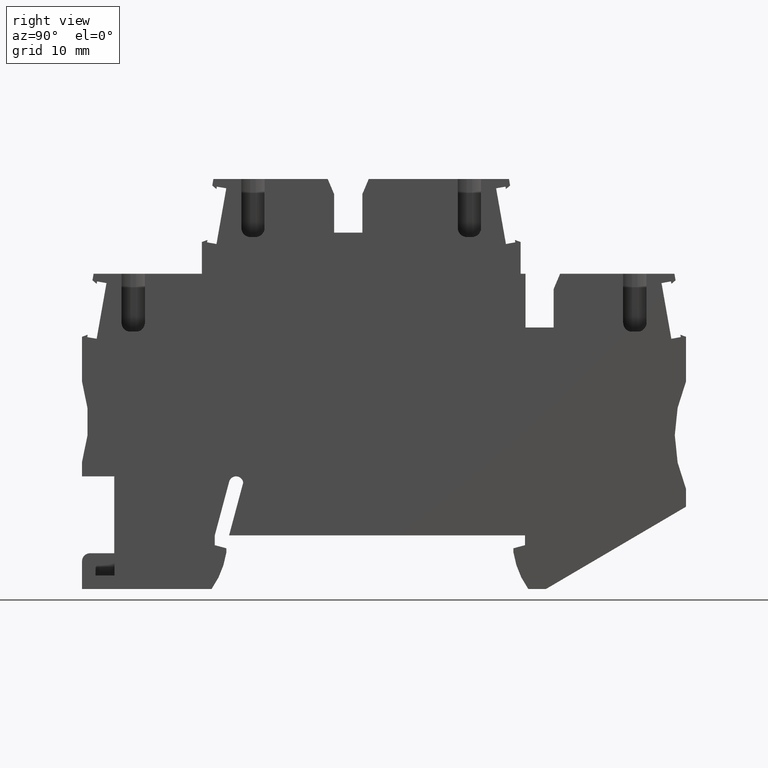
[diagram: clean part render]
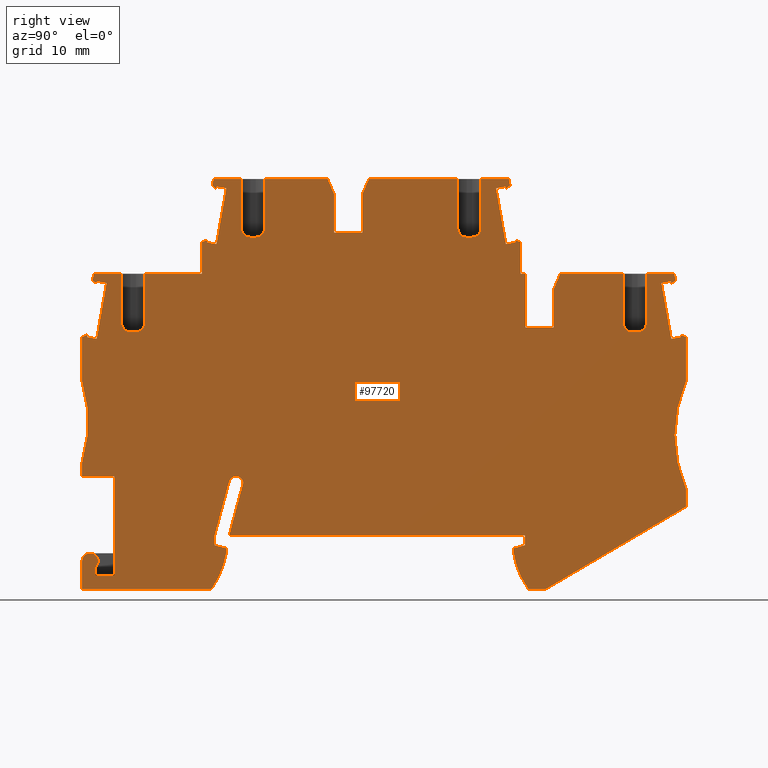
[diagram: same view with one face highlighted and labeled with its STEP entity id]
A machine part, right view. The second image highlights one B-rep face of the part: STEP entity #97720.
In plain terms, the highlighted planar face has unit normal (1, -0, -0).
Its self-contained STEP definition (entity closure, byte-faithful):
#6490=CARTESIAN_POINT('',(184.928036999983,25.7467138221751,53.67));
#6500=VERTEX_POINT('',#6490);
#6530=CARTESIAN_POINT('',(184.928036999983,-15.176449,53.67));
#6540=DIRECTION('',(2.692290834716E-15,-1.,0.));
#6550=VECTOR('',#6540,1.);
#6560=LINE('',#6530,#6550);
#6570=CARTESIAN_POINT('',(184.928036999983,31.7467138221735,53.67));
#6580=VERTEX_POINT('',#6570);
#6590=EDGE_CURVE('',#6580,#6500,#6560,.T.);
#9760=CARTESIAN_POINT('',(197.453037000004,25.2467138221743,53.67));
#9770=VERTEX_POINT('',#9760);
#11160=CARTESIAN_POINT('',(196.853037000005,25.2467138221757,53.67));
#11170=VERTEX_POINT('',#11160);
#17270=CARTESIAN_POINT('',(195.853037000005,31.746713822173,53.67));
#17280=VERTEX_POINT('',#17270);
#17360=CARTESIAN_POINT('',(195.853037000006,26.2467138221756,53.67));
#17370=VERTEX_POINT('',#17360);
#17400=CARTESIAN_POINT('',(195.853037000009,2.99671382217016,
53.6700000000001));
#17410=DIRECTION('',(-1.17239551400417E-13,1.,2.77555756285536E-17));
#17420=VECTOR('',#17410,1.);
#17430=LINE('',#17400,#17420);
#17440=EDGE_CURVE('',#17370,#17280,#17430,.T.);
#17990=CARTESIAN_POINT('',(14.205724548308,-44.3347945523262,53.67));
#18000=DIRECTION('',(0.965925826289086,0.258819045102457,0.));
#18010=VECTOR('',#18000,1.);
#18020=LINE('',#17990,#18010);
#18030=CARTESIAN_POINT('',(183.578037308736,1.04837987200989,53.67));
#18040=VERTEX_POINT('',#18030);
#18050=CARTESIAN_POINT('',(184.878037308736,1.39671382217028,53.67));
#18060=VERTEX_POINT('',#18050);
#18070=EDGE_CURVE('',#18040,#18060,#18020,.T.);
#18370=CARTESIAN_POINT('',(184.878037308736,-15.176449,53.67));
#18380=DIRECTION('',(6.93889390390723E-17,1.,0.));
#18390=VECTOR('',#18380,1.);
#18400=LINE('',#18370,#18390);
#18410=CARTESIAN_POINT('',(184.878037308736,2.4967138221702,53.67));
#18420=VERTEX_POINT('',#18410);
#18430=EDGE_CURVE('',#18060,#18420,#18400,.T.);
#18680=CARTESIAN_POINT('',(14.205724548308,2.49671382217021,53.67));
#18690=DIRECTION('',(-1.,6.93889390390723E-17,0.));
#18700=VECTOR('',#18690,1.);
#18710=LINE('',#18680,#18700);
#18720=CARTESIAN_POINT('',(151.778037308736,2.4967138221702,53.67));
#18730=VERTEX_POINT('',#18720);
#18740=EDGE_CURVE('',#18420,#18730,#18710,.T.);
#18990=CARTESIAN_POINT('',(183.578037308725,-15.176449,53.67));
#19000=DIRECTION('',(6.90295043348499E-13,1.,0.));
#19010=VECTOR('',#19000,1.);
#19020=LINE('',#18990,#19010);
#19030=CARTESIAN_POINT('',(183.578037308736,0.596713822169791,53.67));
#19040=VERTEX_POINT('',#19030);
#19050=EDGE_CURVE('',#19040,#18040,#19020,.T.);
#19300=CARTESIAN_POINT('',(192.972009988112,2.0120856104678,53.67));
#19310=DIRECTION('',(0.,0.,-1.));
#19320=DIRECTION('',(-1.,6.93889390390723E-17,0.));
#19330=AXIS2_PLACEMENT_3D('',#19300,#19310,#19320);
#19340=CIRCLE('',#19330,9.499999999999);
#19350=CARTESIAN_POINT('',(185.236980961868,-3.50328617782979,53.67));
#19360=VERTEX_POINT('',#19350);
#19370=EDGE_CURVE('',#19360,#19040,#19340,.T.);
#19620=CARTESIAN_POINT('',(14.205724548308,-3.50328617781987,53.67));
#19630=DIRECTION('',(-1.,5.79813974610488E-14,0.));
#19640=VECTOR('',#19630,1.);
#19650=LINE('',#19620,#19640);
#19660=CARTESIAN_POINT('',(187.222178282835,-3.5032861778299,53.67));
#19670=VERTEX_POINT('',#19660);
#19680=EDGE_CURVE('',#19670,#19360,#19650,.T.);
#19930=CARTESIAN_POINT('',(14.205724548308,-105.174575611719,53.67));
#19940=DIRECTION('',(-0.862158641431198,-0.5066384085376,0.));
#19950=VECTOR('',#19940,1.);
#19960=LINE('',#19930,#19950);
#19970=CARTESIAN_POINT('',(202.878037308736,5.6967138221754,53.67));
#19980=VERTEX_POINT('',#19970);
#19990=EDGE_CURVE('',#19980,#19670,#19960,.T.);
#20240=CARTESIAN_POINT('',(202.878037308736,-15.176449,53.67));
#20250=DIRECTION('',(-1.3062127899644E-16,-1.,0.));
#20260=VECTOR('',#20250,1.);
#20270=LINE('',#20240,#20260);
#20280=CARTESIAN_POINT('',(202.878037308736,7.69671382216888,53.67));
#20290=VERTEX_POINT('',#20280);
#20300=EDGE_CURVE('',#20290,#19980,#20270,.T.);
#20550=CARTESIAN_POINT('',(216.625764393603,13.6967138221689,53.67));
#20560=DIRECTION('',(0.,0.,1.));
#20570=DIRECTION('',(1.,-6.93889390390723E-17,0.));
#20580=AXIS2_PLACEMENT_3D('',#20550,#20560,#20570);
#20590=CIRCLE('',#20580,15.);
#20600=CARTESIAN_POINT('',(202.878037294039,19.6967137884928,53.67));
#20610=VERTEX_POINT('',#20600);
#20620=EDGE_CURVE('',#20610,#20290,#20590,.T.);
#20870=CARTESIAN_POINT('',(202.878037294039,-15.176449,53.67));
#20880=DIRECTION('',(-6.93889390390723E-17,-1.,0.));
#20890=VECTOR('',#20880,1.);
#20900=LINE('',#20870,#20890);
#20910=CARTESIAN_POINT('',(202.878037294039,24.7030731418167,53.67));
#20920=VERTEX_POINT('',#20910);
#20930=EDGE_CURVE('',#20920,#20610,#20900,.T.);
#21180=CARTESIAN_POINT('',(14.205724548308,93.3741790099296,53.67));
#21190=DIRECTION('',(0.939692620788304,-0.342020143319087,0.));
#21200=VECTOR('',#21190,1.);
#21210=LINE('',#21180,#21200);
#21220=CARTESIAN_POINT('',(202.245229272641,24.9333964256054,53.67));
#21230=VERTEX_POINT('',#21220);
#21240=EDGE_CURVE('',#21230,#20920,#21210,.T.);
#21490=CARTESIAN_POINT('',(209.317677213263,-15.176449,53.67));
#21500=DIRECTION('',(0.173648177667931,-0.984807753012032,0.));
#21510=VECTOR('',#21500,1.);
#21520=LINE('',#21490,#21510);
#21530=CARTESIAN_POINT('',(202.292514994815,24.6652257691104,53.67));
#21540=VERTEX_POINT('',#21530);
#21550=EDGE_CURVE('',#21230,#21540,#21520,.T.);
#21800=CARTESIAN_POINT('',(14.205724548308,-8.49955010156951,53.67));
#21810=DIRECTION('',(-0.984807753012117,-0.173648177667446,0.));
#21820=VECTOR('',#21810,1.);
#21830=LINE('',#21800,#21820);
#21840=CARTESIAN_POINT('',(201.238770699091,24.479422219006,53.67));
#21850=VERTEX_POINT('',#21840);
#21860=EDGE_CURVE('',#21540,#21850,#21830,.T.);
#22110=CARTESIAN_POINT('',(208.231170738506,-15.176449,53.67));
#22120=DIRECTION('',(0.17364817766702,-0.984807753012192,0.));
#22130=VECTOR('',#22120,1.);
#22140=LINE('',#22110,#22130);
#22150=CARTESIAN_POINT('',(200.140445975347,30.7083312568086,53.67));
#22160=VERTEX_POINT('',#22150);
#22170=EDGE_CURVE('',#22160,#21850,#22140,.T.);
#22420=CARTESIAN_POINT('',(209.317677213191,-15.176449,53.67));
#22430=DIRECTION('',(0.173648177666326,-0.984807753012315,0.));
#22440=VECTOR('',#22430,1.);
#22450=LINE('',#22420,#22440);
#22460=CARTESIAN_POINT('',(201.194190271071,30.8941348069122,53.67));
#22470=VERTEX_POINT('',#22460);
#22480=CARTESIAN_POINT('',(201.241475993246,30.6259641504139,53.67));
#22490=VERTEX_POINT('',#22480);
#22500=EDGE_CURVE('',#22470,#22490,#22450,.T.);
#22800=CARTESIAN_POINT('',(14.205724548308,-2.07697678126761,53.67));
#22810=DIRECTION('',(0.984807753012229,0.173648177666812,0.));
#22820=VECTOR('',#22810,1.);
#22830=LINE('',#22800,#22820);
#22840=EDGE_CURVE('',#22160,#22470,#22830,.T.);
#23040=CARTESIAN_POINT('',(14.205724548308,-126.315665903762,53.67));
#23050=DIRECTION('',(-0.766044443119454,-0.642787609685972,0.));
#23060=VECTOR('',#23050,1.);
#23070=LINE('',#23040,#23060);
#23080=CARTESIAN_POINT('',(201.710288516618,31.0193445658664,53.67));
#23090=VERTEX_POINT('',#23080);
#23100=EDGE_CURVE('',#23090,#22490,#23070,.T.);
#23350=CARTESIAN_POINT('',(209.855853317472,-15.176449,53.67));
#23360=DIRECTION('',(0.173648177665959,-0.984807753012379,0.));
#23370=VECTOR('',#23360,1.);
#23380=LINE('',#23350,#23370);
#23390=CARTESIAN_POINT('',(201.582033691794,31.7467138221735,53.67));
#23400=VERTEX_POINT('',#23390);
#23410=EDGE_CURVE('',#23400,#23090,#23380,.T.);
#24000=CARTESIAN_POINT('',(14.205724548308,31.7467138221518,53.67));
#24010=DIRECTION('',(1.,1.15435438985401E-13,0.));
#24020=VECTOR('',#24010,1.);
#24030=LINE('',#24000,#24020);
#24040=CARTESIAN_POINT('',(198.453037000005,31.746713822173,53.67));
#24050=VERTEX_POINT('',#24040);
#24060=EDGE_CURVE('',#24050,#23400,#24030,.T.);
#24330=CARTESIAN_POINT('',(188.796537028019,31.746713822172,53.67));
#24340=VERTEX_POINT('',#24330);
#24350=EDGE_CURVE('',#24340,#17280,#24030,.T.);
#26030=CARTESIAN_POINT('',(168.964608018885,-15.176449,53.67));
#26040=DIRECTION('',(-0.389303997086923,-0.921109330021222,0.));
#26050=VECTOR('',#26040,1.);
#26060=LINE('',#26030,#26050);
#26070=CARTESIAN_POINT('',(188.078037000003,30.0467130916931,53.67));
#26080=VERTEX_POINT('',#26070);
#26090=EDGE_CURVE('',#24340,#26080,#26060,.T.);
#26340=CARTESIAN_POINT('',(188.078037000003,-15.176449,53.67));
#26350=DIRECTION('',(-9.18709552877317E-15,1.,0.));
#26360=VECTOR('',#26350,1.);
#26370=LINE('',#26340,#26360);
#26380=CARTESIAN_POINT('',(188.078037000003,25.7467138221751,53.67));
#26390=VERTEX_POINT('',#26380);
#26400=EDGE_CURVE('',#26390,#26080,#26370,.T.);
#26840=CARTESIAN_POINT('',(168.653843651947,25.2467138221717,53.67));
#26850=DIRECTION('',(1.,8.9848551017661E-14,0.));
#26860=VECTOR('',#26850,1.);
#26870=LINE('',#26840,#26860);
#26880=EDGE_CURVE('',#11170,#9770,#26870,.T.);
#27650=CARTESIAN_POINT('',(178.953036999988,35.8467138221694,53.67));
#27660=VERTEX_POINT('',#27650);
#28950=CARTESIAN_POINT('',(179.953036999989,2.99671382217016,53.67));
#28960=DIRECTION('',(-7.24420523566576E-15,1.,0.));
#28970=VECTOR('',#28960,1.);
#28980=LINE('',#28950,#28970);
#28990=CARTESIAN_POINT('',(179.953036999989,36.8467138221695,
53.6699999999999));
#29000=VERTEX_POINT('',#28990);
#29010=CARTESIAN_POINT('',(179.953036999988,42.3467138221667,53.67));
#29020=VERTEX_POINT('',#29010);
#29030=EDGE_CURVE('',#29000,#29020,#28980,.T.);
#29300=CARTESIAN_POINT('',(178.953036999989,36.846713822168,53.67));
#29310=DIRECTION('',(-1.15352172258554E-13,2.7755575615018E-17,-1.));
#29320=DIRECTION('',(-1.,1.09995346164751E-13,1.15352172258554E-13));
#29330=AXIS2_PLACEMENT_3D('',#29300,#29310,#29320);
#29340=CIRCLE('',#29330,1.);
#29350=EDGE_CURVE('',#29000,#27660,#29340,.T.);
#30430=CARTESIAN_POINT('',(178.353036999988,35.8467138221693,53.67));
#30440=VERTEX_POINT('',#30430);
#39650=CARTESIAN_POINT('',(168.653843651947,35.8467138221671,53.67));
#39660=DIRECTION('',(1.,8.9848551017661E-14,0.));
#39670=VECTOR('',#39660,1.);
#39680=LINE('',#39650,#39670);
#39690=EDGE_CURVE('',#30440,#27660,#39680,.T.);
#39930=CARTESIAN_POINT('',(177.353036999988,42.3467138221667,53.67));
#39940=VERTEX_POINT('',#39930);
#40020=CARTESIAN_POINT('',(177.353036999989,36.8467138221693,53.67));
#40030=VERTEX_POINT('',#40020);
#40060=CARTESIAN_POINT('',(177.353036999993,2.99671382217016,
53.6700000000001));
#40070=DIRECTION('',(-1.17239551400417E-13,1.,2.77555756285536E-17));
#40080=VECTOR('',#40070,1.);
#40090=LINE('',#40060,#40080);
#40100=EDGE_CURVE('',#40030,#39940,#40090,.T.);
#40220=CARTESIAN_POINT('',(178.353036999989,36.8467138221694,53.67));
#40230=DIRECTION('',(0.,0.,1.));
#40240=DIRECTION('',(1.,0.,0.));
#40250=AXIS2_PLACEMENT_3D('',#40220,#40230,#40240);
#40260=CIRCLE('',#40250,1.);
#40270=EDGE_CURVE('',#40030,#30440,#40260,.T.);
#41170=CARTESIAN_POINT('',(193.224919313043,-15.176449,53.67));
#41180=DIRECTION('',(0.173648177667472,-0.984807753012113,0.));
#41190=VECTOR('',#41180,1.);
#41200=LINE('',#41170,#41190);
#41210=CARTESIAN_POINT('',(183.082033691777,42.3467138221672,53.67));
#41220=VERTEX_POINT('',#41210);
#41230=CARTESIAN_POINT('',(183.210288516602,41.619344565859,53.67));
#41240=VERTEX_POINT('',#41230);
#41250=EDGE_CURVE('',#41220,#41240,#41200,.T.);
#41550=CARTESIAN_POINT('',(192.686743208676,-15.176449,53.67));
#41560=DIRECTION('',(0.173648177666326,-0.984807753012315,0.));
#41570=VECTOR('',#41560,1.);
#41580=LINE('',#41550,#41570);
#41590=CARTESIAN_POINT('',(182.694190271054,41.4941348069044,53.67));
#41600=VERTEX_POINT('',#41590);
#41610=CARTESIAN_POINT('',(182.741475993229,41.2259641504061,53.67));
#41620=VERTEX_POINT('',#41610);
#41630=EDGE_CURVE('',#41600,#41620,#41580,.T.);
#41930=CARTESIAN_POINT('',(191.600236734,-15.176449,53.67));
#41940=DIRECTION('',(0.173648177667046,-0.984807753012188,0.));
#41950=VECTOR('',#41940,1.);
#41960=LINE('',#41930,#41950);
#41970=CARTESIAN_POINT('',(181.640445975331,41.3083312568009,53.67));
#41980=VERTEX_POINT('',#41970);
#41990=CARTESIAN_POINT('',(182.738770699075,35.0794222189983,53.67));
#42000=VERTEX_POINT('',#41990);
#42010=EDGE_CURVE('',#41980,#42000,#41960,.T.);
#42310=CARTESIAN_POINT('',(14.205724548308,97.2407296761239,53.67));
#42320=DIRECTION('',(0.939692620788329,-0.342020143319018,0.));
#42330=VECTOR('',#42320,1.);
#42340=LINE('',#42310,#42330);
#42350=CARTESIAN_POINT('',(183.745229272624,35.5333964255975,53.67));
#42360=VERTEX_POINT('',#42350);
#42370=CARTESIAN_POINT('',(184.37803727474,35.3030731488271,53.67));
#42380=VERTEX_POINT('',#42370);
#42390=EDGE_CURVE('',#42360,#42380,#42340,.T.);
#42690=CARTESIAN_POINT('',(184.37803727474,31.7467138221735,53.67));
#42700=DIRECTION('',(1.,0.,0.));
#42710=VECTOR('',#42700,1.);
#42720=LINE('',#42690,#42710);
#42730=CARTESIAN_POINT('',(184.37803727474,31.7467138221735,53.67));
#42740=VERTEX_POINT('',#42730);
#42750=EDGE_CURVE('',#42740,#6580,#42720,.T.);
#43000=CARTESIAN_POINT('',(184.37803727474,-15.176449,53.67));
#43010=DIRECTION('',(-5.46784839627889E-15,1.,0.));
#43020=VECTOR('',#43010,1.);
#43030=LINE('',#43000,#43020);
#43040=EDGE_CURVE('',#42740,#42380,#43030,.T.);
#43240=CARTESIAN_POINT('',(192.686743208766,-15.176449,53.67));
#43250=DIRECTION('',(0.173648177667931,-0.984807753012032,0.));
#43260=VECTOR('',#43250,1.);
#43270=LINE('',#43240,#43260);
#43280=CARTESIAN_POINT('',(183.792514994799,35.2652257691027,53.67));
#43290=VERTEX_POINT('',#43280);
#43300=EDGE_CURVE('',#42360,#43290,#43270,.T.);
#43550=CARTESIAN_POINT('',(14.205724548308,5.36249904154224,53.67));
#43560=DIRECTION('',(-0.984807753012117,-0.173648177667446,0.));
#43570=VECTOR('',#43560,1.);
#43580=LINE('',#43550,#43570);
#43590=EDGE_CURVE('',#43290,#42000,#43580,.T.);
#43790=CARTESIAN_POINT('',(14.205724548308,11.7850723618319,53.67));
#43800=DIRECTION('',(0.984807753012229,0.173648177666812,0.));
#43810=VECTOR('',#43800,1.);
#43820=LINE('',#43790,#43810);
#43830=EDGE_CURVE('',#41980,#41600,#43820,.T.);
#44030=CARTESIAN_POINT('',(14.205724548308,-100.192322726944,53.67));
#44040=DIRECTION('',(-0.76604444311958,-0.642787609685822,0.));
#44050=VECTOR('',#44040,1.);
#44060=LINE('',#44030,#44050);
#44070=EDGE_CURVE('',#41240,#41620,#44060,.T.);
#44950=CARTESIAN_POINT('',(14.205724548308,42.3467138221476,53.67));
#44960=DIRECTION('',(-1.,-1.15435438985401E-13,0.));
#44970=VECTOR('',#44960,1.);
#44980=LINE('',#44950,#44970);
#44990=EDGE_CURVE('',#41220,#29020,#44980,.T.);
#45060=CARTESIAN_POINT('',(167.396536719284,42.3467138221654,53.67));
#45070=VERTEX_POINT('',#45060);
#45080=EDGE_CURVE('',#39940,#45070,#44980,.T.);
#48190=CARTESIAN_POINT('',(143.084550636986,-15.176449,53.67));
#48200=DIRECTION('',(-0.389303997086923,-0.921109330021222,0.));
#48210=VECTOR('',#48200,1.);
#48220=LINE('',#48190,#48210);
#48230=CARTESIAN_POINT('',(166.678037000003,40.6467138221656,53.67));
#48240=VERTEX_POINT('',#48230);
#48250=EDGE_CURVE('',#45070,#48240,#48220,.T.);
#48500=CARTESIAN_POINT('',(166.678037000003,-15.176449,53.67));
#48510=DIRECTION('',(-9.18709552877317E-15,1.,0.));
#48520=VECTOR('',#48510,1.);
#48530=LINE('',#48500,#48520);
#48540=CARTESIAN_POINT('',(166.678037000003,36.3467138221751,53.67));
#48550=VERTEX_POINT('',#48540);
#48560=EDGE_CURVE('',#48550,#48240,#48530,.T.);
#49640=CARTESIAN_POINT('',(163.528036999983,36.3467138221751,53.67));
#49650=VERTEX_POINT('',#49640);
#49680=CARTESIAN_POINT('',(163.528036999983,-15.176449,53.67));
#49690=DIRECTION('',(2.692290834716E-15,-1.,0.));
#49700=VECTOR('',#49690,1.);
#49710=LINE('',#49680,#49700);
#49720=CARTESIAN_POINT('',(163.528036999983,40.6467138221659,53.67));
#49730=VERTEX_POINT('',#49720);
#49740=EDGE_CURVE('',#49730,#49650,#49710,.T.);
#49990=CARTESIAN_POINT('',(187.121523363,-15.176449,53.67));
#50000=DIRECTION('',(-0.389303997086923,0.921109330021222,0.));
#50010=VECTOR('',#50000,1.);
#50020=LINE('',#49990,#50010);
#50030=CARTESIAN_POINT('',(162.809537280701,42.346713822167,53.67));
#50040=VERTEX_POINT('',#50030);
#50050=EDGE_CURVE('',#49730,#50040,#50020,.T.);
#50260=CARTESIAN_POINT('',(14.205724548308,36.3467138221766,53.67));
#50270=DIRECTION('',(-1.,9.92261828258734E-15,0.));
#50280=VECTOR('',#50270,1.);
#50290=LINE('',#50260,#50280);
#50300=EDGE_CURVE('',#48550,#49650,#50290,.T.);
#51280=CARTESIAN_POINT('',(154.753036999973,35.8467138221694,53.67));
#51290=VERTEX_POINT('',#51280);
#54770=CARTESIAN_POINT('',(168.653843651947,35.8467138221681,53.67));
#54780=DIRECTION('',(-1.,8.45313655265971E-14,0.));
#54790=VECTOR('',#54780,1.);
#54800=LINE('',#54770,#54790);
#54810=CARTESIAN_POINT('',(154.153036999974,35.8467138221694,53.67));
#54820=VERTEX_POINT('',#54810);
#54830=EDGE_CURVE('',#51290,#54820,#54800,.T.);
#58440=CARTESIAN_POINT('',(155.753036999973,36.8467138221694,
53.6700000000001));
#58450=VERTEX_POINT('',#58440);
#58530=CARTESIAN_POINT('',(155.753036999973,42.346713822168,
53.6700000000001));
#58540=VERTEX_POINT('',#58530);
#58570=CARTESIAN_POINT('',(155.753036999969,2.99671382217016,
53.6700000000001));
#58580=DIRECTION('',(-1.17239551400417E-13,-1.,-2.77555756291847E-17));
#58590=VECTOR('',#58580,1.);
#58600=LINE('',#58570,#58590);
#58610=EDGE_CURVE('',#58540,#58450,#58600,.T.);
#58750=CARTESIAN_POINT('',(154.753036999973,36.8467138221694,53.67));
#58760=DIRECTION('',(0.,0.,1.));
#58770=DIRECTION('',(1.,0.,0.));
#58780=AXIS2_PLACEMENT_3D('',#58750,#58760,#58770);
#58790=CIRCLE('',#58780,1.);
#58800=EDGE_CURVE('',#51290,#58450,#58790,.T.);
#64650=CARTESIAN_POINT('',(154.153036999973,36.8467138221694,53.67));
#64660=DIRECTION('',(-1.15518705712248E-13,-2.7755575615654E-17,1.));
#64670=DIRECTION('',(1.,1.15504827924453E-13,1.15518705712248E-13));
#64680=AXIS2_PLACEMENT_3D('',#64650,#64660,#64670);
#64690=CIRCLE('',#64680,1.);
#64700=CARTESIAN_POINT('',(153.153036999973,36.8467138221695,
53.6699999999999));
#64710=VERTEX_POINT('',#64700);
#64720=EDGE_CURVE('',#64710,#54820,#64690,.T.);
#64980=CARTESIAN_POINT('',(153.153036999973,2.99671382217016,53.67));
#64990=DIRECTION('',(1.73472347596343E-15,1.,0.));
#65000=VECTOR('',#64990,1.);
#65010=LINE('',#64980,#65000);
#65020=CARTESIAN_POINT('',(153.153036999973,42.346713822168,53.67));
#65030=VERTEX_POINT('',#65020);
#65040=EDGE_CURVE('',#64710,#65030,#65010,.T.);
#66160=CARTESIAN_POINT('',(138.928036999999,-2.00328617783009,53.67));
#66170=VERTEX_POINT('',#66160);
#66200=CARTESIAN_POINT('',(14.205724548308,-2.00328617783009,53.67));
#66210=DIRECTION('',(1.,-6.93889390390723E-17,0.));
#66220=VECTOR('',#66210,1.);
#66230=LINE('',#66200,#66220);
#66240=CARTESIAN_POINT('',(136.828037000001,-2.00328617783009,53.67));
#66250=VERTEX_POINT('',#66240);
#66260=EDGE_CURVE('',#66250,#66170,#66230,.T.);
#66500=CARTESIAN_POINT('',(138.928036999999,-15.176449,53.67));
#66510=DIRECTION('',(6.93889390390723E-17,1.,0.));
#66520=VECTOR('',#66510,1.);
#66530=LINE('',#66500,#66520);
#66540=CARTESIAN_POINT('',(138.928036999999,9.09671382217078,53.67));
#66550=VERTEX_POINT('',#66540);
#66560=EDGE_CURVE('',#66170,#66550,#66530,.T.);
#66830=CARTESIAN_POINT('',(135.328037308736,-15.176449,53.67));
#66840=DIRECTION('',(-1.98452365651747E-15,1.,0.));
#66850=VECTOR('',#66840,1.);
#66860=LINE('',#66830,#66850);
#66870=CARTESIAN_POINT('',(135.328037308736,9.09671382217078,53.67));
#66880=VERTEX_POINT('',#66870);
#66890=CARTESIAN_POINT('',(135.328037308736,10.6967138221689,53.67));
#66900=VERTEX_POINT('',#66890);
#66910=EDGE_CURVE('',#66880,#66900,#66860,.T.);
#67210=CARTESIAN_POINT('',(135.328037322701,-15.176449,53.67));
#67220=DIRECTION('',(6.93889390390723E-17,1.,0.));
#67230=VECTOR('',#67220,1.);
#67240=LINE('',#67210,#67230);
#67250=CARTESIAN_POINT('',(135.328037322701,19.6967137777626,53.67));
#67260=VERTEX_POINT('',#67250);
#67270=CARTESIAN_POINT('',(135.328037322701,24.7030733168878,53.67));
#67280=VERTEX_POINT('',#67270);
#67290=EDGE_CURVE('',#67260,#67280,#67240,.T.);
#67590=CARTESIAN_POINT('',(128.888397095456,-15.176449,53.67));
#67600=DIRECTION('',(0.173648177667931,0.984807753012032,0.));
#67610=VECTOR('',#67600,1.);
#67620=LINE('',#67590,#67610);
#67630=CARTESIAN_POINT('',(135.913559304594,24.665225716314,53.67));
#67640=VERTEX_POINT('',#67630);
#67650=CARTESIAN_POINT('',(135.960845047943,24.9333964928843,53.67));
#67660=VERTEX_POINT('',#67650);
#67670=EDGE_CURVE('',#67640,#67660,#67620,.T.);
#67970=CARTESIAN_POINT('',(129.974903261479,-15.176449,53.67));
#67980=DIRECTION('',(0.173648177667023,0.984807753012192,0.));
#67990=VECTOR('',#67980,1.);
#68000=LINE('',#67970,#67990);
#68010=CARTESIAN_POINT('',(136.967303300894,24.4794222190063,53.67));
#68020=VERTEX_POINT('',#68010);
#68030=CARTESIAN_POINT('',(138.065628024637,30.7083312568075,53.67));
#68040=VERTEX_POINT('',#68030);
#68050=EDGE_CURVE('',#68020,#68040,#68000,.T.);
#68350=CARTESIAN_POINT('',(14.205724548308,133.632889532351,53.67));
#68360=DIRECTION('',(-0.766044443119474,0.642787609685948,0.));
#68370=VECTOR('',#68360,1.);
#68380=LINE('',#68350,#68370);
#68390=CARTESIAN_POINT('',(136.964598266372,30.6259638719466,53.67));
#68400=VERTEX_POINT('',#68390);
#68410=CARTESIAN_POINT('',(136.495785474057,31.0193445130692,53.67));
#68420=VERTEX_POINT('',#68410);
#68430=EDGE_CURVE('',#68400,#68420,#68380,.T.);
#68730=CARTESIAN_POINT('',(14.205724548308,31.746713822177,53.67));
#68740=DIRECTION('',(-1.,1.15574216863479E-13,0.));
#68750=VECTOR('',#68740,1.);
#68760=LINE('',#68730,#68750);
#68770=CARTESIAN_POINT('',(148.728036725247,31.7467138221614,53.67));
#68780=VERTEX_POINT('',#68770);
#68790=CARTESIAN_POINT('',(142.353036999972,31.7467138221623,53.67));
#68800=VERTEX_POINT('',#68790);
#68810=EDGE_CURVE('',#68780,#68800,#68760,.T.);
#69210=CARTESIAN_POINT('',(139.753036999972,31.7467138221623,53.67));
#69220=VERTEX_POINT('',#69210);
#69250=CARTESIAN_POINT('',(136.624040308189,31.7467138221628,53.67));
#69260=VERTEX_POINT('',#69250);
#69270=EDGE_CURVE('',#69220,#69260,#68760,.T.);
#69910=CARTESIAN_POINT('',(14.205724548308,-13.6590443271738,53.67));
#69920=DIRECTION('',(0.939692620788304,0.342020143319087,0.));
#69930=VECTOR('',#69920,1.);
#69940=LINE('',#69910,#69930);
#69950=CARTESIAN_POINT('',(148.728036725247,35.3030731488307,53.67));
#69960=VERTEX_POINT('',#69950);
#69970=CARTESIAN_POINT('',(149.360844727363,35.5333964256018,53.67));
#69980=VERTEX_POINT('',#69970);
#69990=EDGE_CURVE('',#69960,#69980,#69940,.T.);
#70290=CARTESIAN_POINT('',(141.505837265967,-15.176449,53.67));
#70300=DIRECTION('',(0.173648177667041,0.984807753012189,0.));
#70310=VECTOR('',#70300,1.);
#70320=LINE('',#70290,#70310);
#70330=CARTESIAN_POINT('',(150.367303300892,35.0794222189993,53.67));
#70340=VERTEX_POINT('',#70330);
#70350=CARTESIAN_POINT('',(151.465628024636,41.3083312568005,53.67));
#70360=VERTEX_POINT('',#70350);
#70370=EDGE_CURVE('',#70340,#70360,#70320,.T.);
#70670=CARTESIAN_POINT('',(14.205724548308,155.476824650563,53.67));
#70680=DIRECTION('',(-0.766044443119871,0.642787609685476,0.));
#70690=VECTOR('',#70680,1.);
#70700=LINE('',#70670,#70690);
#70710=CARTESIAN_POINT('',(150.364598006755,41.2259641503884,53.67));
#70720=VERTEX_POINT('',#70710);
#70730=CARTESIAN_POINT('',(149.895785483365,41.6193445658553,53.67));
#70740=VERTEX_POINT('',#70730);
#70750=EDGE_CURVE('',#70720,#70740,#70700,.T.);
#71050=CARTESIAN_POINT('',(139.881154686942,-15.176449,53.67));
#71060=DIRECTION('',(0.173648177667169,0.984807753012166,0.));
#71070=VECTOR('',#71060,1.);
#71080=LINE('',#71050,#71070);
#71090=CARTESIAN_POINT('',(150.024040308191,42.3467138221685,53.67));
#71100=VERTEX_POINT('',#71090);
#71110=EDGE_CURVE('',#70740,#71100,#71080,.T.);
#71360=CARTESIAN_POINT('',(140.419330791311,-15.176449,53.67));
#71370=DIRECTION('',(0.173648177666326,0.984807753012315,0.));
#71380=VECTOR('',#71370,1.);
#71390=LINE('',#71360,#71380);
#71400=CARTESIAN_POINT('',(150.411883728932,41.4941348069007,53.67));
#71410=VERTEX_POINT('',#71400);
#71420=EDGE_CURVE('',#70720,#71410,#71390,.T.);
#71670=CARTESIAN_POINT('',(14.205724548308,65.5109556090997,53.67));
#71680=DIRECTION('',(0.984807753012229,-0.173648177666812,0.));
#71690=VECTOR('',#71680,1.);
#71700=LINE('',#71670,#71690);
#71710=EDGE_CURVE('',#71410,#70360,#71700,.T.);
#71910=CARTESIAN_POINT('',(14.205724548308,59.0883822890139,53.67));
#71920=DIRECTION('',(-0.984807753012117,0.173648177667446,0.));
#71930=VECTOR('',#71920,1.);
#71940=LINE('',#71910,#71930);
#71950=CARTESIAN_POINT('',(149.313559005188,35.2652257691004,53.67));
#71960=VERTEX_POINT('',#71950);
#71970=EDGE_CURVE('',#70340,#71960,#71940,.T.);
#72220=CARTESIAN_POINT('',(140.419330791221,-15.176449,53.67));
#72230=DIRECTION('',(0.173648177667931,0.984807753012032,0.));
#72240=VECTOR('',#72230,1.);
#72250=LINE('',#72220,#72240);
#72260=EDGE_CURVE('',#71960,#69980,#72250,.T.);
#72460=CARTESIAN_POINT('',(148.728036725247,-15.176449,53.67));
#72470=DIRECTION('',(6.93889390390723E-17,1.,0.));
#72480=VECTOR('',#72470,1.);
#72490=LINE('',#72460,#72480);
#72500=EDGE_CURVE('',#68780,#69960,#72490,.T.);
#73630=CARTESIAN_POINT('',(140.753036999973,25.2467138221644,53.67));
#73640=VERTEX_POINT('',#73630);
#73990=CARTESIAN_POINT('',(140.753036999971,26.2467138221636,53.67));
#74000=DIRECTION('',(-1.15518705712248E-13,-2.7755575615654E-17,1.));
#74010=DIRECTION('',(1.,1.15504827924453E-13,1.15518705712248E-13));
#74020=AXIS2_PLACEMENT_3D('',#73990,#74000,#74010);
#74030=CIRCLE('',#74020,1.);
#74040=CARTESIAN_POINT('',(139.753036999971,26.2467138221638,
53.6699999999999));
#74050=VERTEX_POINT('',#74040);
#74060=EDGE_CURVE('',#74050,#73640,#74030,.T.);
#74320=CARTESIAN_POINT('',(139.753036999971,2.99671382217016,53.67));
#74330=DIRECTION('',(1.73472347596343E-15,1.,0.));
#74340=VECTOR('',#74330,1.);
#74350=LINE('',#74320,#74340);
#74360=EDGE_CURVE('',#74050,#69220,#74350,.T.);
#74920=CARTESIAN_POINT('',(141.353036999972,25.2467138221637,
53.6699999999996));
#74930=VERTEX_POINT('',#74920);
#79730=CARTESIAN_POINT('',(168.653843651947,25.246713822162,53.67));
#79740=DIRECTION('',(-1.,8.45313655265971E-14,0.));
#79750=VECTOR('',#79740,1.);
#79760=LINE('',#79730,#79750);
#79770=EDGE_CURVE('',#74930,#73640,#79760,.T.);
#86700=CARTESIAN_POINT('',(142.353036999969,2.99671382217016,
53.6699999999997));
#86710=DIRECTION('',(-1.17239551400417E-13,-1.,-2.77555756291847E-17));
#86720=VECTOR('',#86710,1.);
#86730=LINE('',#86700,#86720);
#86740=CARTESIAN_POINT('',(142.353036999971,26.2467138221637,
53.6699999999997));
#86750=VERTEX_POINT('',#86740);
#86760=EDGE_CURVE('',#68800,#86750,#86730,.T.);
#86970=CARTESIAN_POINT('',(141.353036999971,26.2467138221637,
53.6699999999996));
#86980=DIRECTION('',(0.,0.,1.));
#86990=DIRECTION('',(1.,0.,0.));
#87000=AXIS2_PLACEMENT_3D('',#86970,#86980,#86990);
#87010=CIRCLE('',#87000,1.);
#87020=EDGE_CURVE('',#74930,#86750,#87010,.T.);
#88620=CARTESIAN_POINT('',(128.350220682446,-15.176449,53.67));
#88630=DIRECTION('',(0.173648177667334,0.984807753012137,0.));
#88640=VECTOR('',#88630,1.);
#88650=LINE('',#88620,#88640);
#88660=EDGE_CURVE('',#68420,#69260,#88650,.T.);
#88860=CARTESIAN_POINT('',(128.888397095528,-15.176449,53.67));
#88870=DIRECTION('',(0.173648177666326,0.984807753012315,0.));
#88880=VECTOR('',#88870,1.);
#88890=LINE('',#88860,#88880);
#88900=CARTESIAN_POINT('',(137.011884028339,30.8941347541144,53.67));
#88910=VERTEX_POINT('',#88900);
#88920=EDGE_CURVE('',#68400,#88910,#88890,.T.);
#89170=CARTESIAN_POINT('',(14.205724548308,52.5481740676151,53.67));
#89180=DIRECTION('',(0.984807753012229,-0.173648177666812,0.));
#89190=VECTOR('',#89180,1.);
#89200=LINE('',#89170,#89190);
#89210=EDGE_CURVE('',#88910,#68040,#89200,.T.);
#89410=CARTESIAN_POINT('',(14.205724548308,46.1256007475204,53.67));
#89420=DIRECTION('',(-0.984807753012117,0.173648177667446,0.));
#89430=VECTOR('',#89420,1.);
#89440=LINE('',#89410,#89430);
#89450=EDGE_CURVE('',#68020,#67640,#89440,.T.);
#89650=CARTESIAN_POINT('',(14.205724548308,-19.3818432374782,53.67));
#89660=DIRECTION('',(0.939692620788387,0.342020143318859,0.));
#89670=VECTOR('',#89660,1.);
#89680=LINE('',#89650,#89670);
#89690=EDGE_CURVE('',#67280,#67660,#89680,.T.);
#89890=CARTESIAN_POINT('',(121.018949287482,15.1967138221689,53.67));
#89900=DIRECTION('',(0.,0.,1.));
#89910=DIRECTION('',(1.,-6.93889390390723E-17,0.));
#89920=AXIS2_PLACEMENT_3D('',#89890,#89900,#89910);
#89930=CIRCLE('',#89920,15.);
#89940=EDGE_CURVE('',#66900,#67260,#89930,.T.);
#90140=CARTESIAN_POINT('',(14.205724548308,9.09671382217078,53.67));
#90150=DIRECTION('',(-1.,6.93889390390723E-17,0.));
#90160=VECTOR('',#90150,1.);
#90170=LINE('',#90140,#90160);
#90180=EDGE_CURVE('',#66550,#66880,#90170,.T.);
#90390=CARTESIAN_POINT('',(136.828037000029,-15.176449,53.67));
#90400=DIRECTION('',(2.11907767086759E-12,-1.,0.));
#90410=VECTOR('',#90400,1.);
#90420=LINE('',#90390,#90410);
#90430=CARTESIAN_POINT('',(136.828036999999,-1.07410657108026,53.67));
#90440=VERTEX_POINT('',#90430);
#90450=EDGE_CURVE('',#90440,#66250,#90420,.T.);
#90710=CARTESIAN_POINT('',(136.228037,-0.403286177829996,53.67));
#90720=DIRECTION('',(0.,0.,1.));
#90730=DIRECTION('',(1.,-6.93889390390723E-17,0.));
#90740=AXIS2_PLACEMENT_3D('',#90710,#90720,#90730);
#90750=CIRCLE('',#90740,0.89999999999984);
#90760=CARTESIAN_POINT('',(135.328037,-0.403286177829994,53.67));
#90770=VERTEX_POINT('',#90760);
#90780=EDGE_CURVE('',#90440,#90770,#90750,.T.);
#91030=CARTESIAN_POINT('',(135.328036999994,-15.176449,53.67));
#91040=DIRECTION('',(3.85792588351647E-13,1.,0.));
#91050=VECTOR('',#91040,1.);
#91060=LINE('',#91030,#91050);
#91070=CARTESIAN_POINT('',(135.328036999999,-3.50328617783006,53.67));
#91080=VERTEX_POINT('',#91070);
#91090=EDGE_CURVE('',#91080,#90770,#91060,.T.);
#91340=CARTESIAN_POINT('',(142.084064629359,2.0120856104678,53.67));
#91350=DIRECTION('',(0.,0.,1.));
#91360=DIRECTION('',(1.,-6.93889390390723E-17,0.));
#91370=AXIS2_PLACEMENT_3D('',#91340,#91350,#91360);
#91380=CIRCLE('',#91370,9.49999999999899);
#91390=CARTESIAN_POINT('',(149.819093655603,-3.50328617782984,53.67));
#91400=VERTEX_POINT('',#91390);
#91410=CARTESIAN_POINT('',(151.478037308736,0.596713822169454,53.67));
#91420=VERTEX_POINT('',#91410);
#91430=EDGE_CURVE('',#91400,#91420,#91380,.T.);
#91730=CARTESIAN_POINT('',(151.478037308746,-15.176449,53.67));
#91740=DIRECTION('',(6.29194409844522E-13,-1.,0.));
#91750=VECTOR('',#91740,1.);
#91760=LINE('',#91730,#91750);
#91770=CARTESIAN_POINT('',(151.478037308735,1.04837987200988,53.67));
#91780=VERTEX_POINT('',#91770);
#91790=EDGE_CURVE('',#91780,#91420,#91760,.T.);
#92040=CARTESIAN_POINT('',(14.205724548308,37.8303852193345,53.67));
#92050=DIRECTION('',(0.965925826289041,-0.258819045102623,0.));
#92060=VECTOR('',#92050,1.);
#92070=LINE('',#92040,#92060);
#92080=CARTESIAN_POINT('',(150.178037308736,1.39671382217031,53.67));
#92090=VERTEX_POINT('',#92080);
#92100=EDGE_CURVE('',#92090,#91780,#92070,.T.);
#92350=CARTESIAN_POINT('',(150.178037308736,-15.176449,53.67));
#92360=DIRECTION('',(-6.93889390390723E-17,-1.,0.));
#92370=VECTOR('',#92360,1.);
#92380=LINE('',#92350,#92370);
#92390=CARTESIAN_POINT('',(150.178037308736,2.49671382217855,53.67));
#92400=VERTEX_POINT('',#92390);
#92410=EDGE_CURVE('',#92400,#92090,#92380,.T.);
#92660=CARTESIAN_POINT('',(145.442527602826,-15.176449,53.67));
#92670=DIRECTION('',(0.258819045102718,0.965925826289016,0.));
#92680=VECTOR('',#92670,1.);
#92690=LINE('',#92660,#92680);
#92700=CARTESIAN_POINT('',(151.787622908133,8.50376905825275,53.67));
#92710=VERTEX_POINT('',#92700);
#92720=EDGE_CURVE('',#92400,#92710,#92690,.T.);
#93010=CARTESIAN_POINT('',(153.355571048017,8.38414988782207,53.67));
#93020=VERTEX_POINT('',#93010);
#93070=CARTESIAN_POINT('',(152.560363569165,8.29671382217019,53.67));
#93080=DIRECTION('',(0.,0.,1.));
#93090=DIRECTION('',(1.,-6.93889390390723E-17,0.));
#93100=AXIS2_PLACEMENT_3D('',#93070,#93080,#93090);
#93110=CIRCLE('',#93100,0.80000000000001);
#93120=EDGE_CURVE('',#93020,#92710,#93110,.T.);
#93290=CARTESIAN_POINT('',(14.205724548308,-3.50328617783193,53.67));
#93300=DIRECTION('',(-1.,-1.54289738893123E-14,0.));
#93310=VECTOR('',#93300,1.);
#93320=LINE('',#93290,#93310);
#93330=EDGE_CURVE('',#91400,#91080,#93320,.T.);
#93870=CARTESIAN_POINT('',(14.205724548308,42.3467138221842,53.67));
#93880=DIRECTION('',(-1.,1.15574216863479E-13,0.));
#93890=VECTOR('',#93880,1.);
#93900=LINE('',#93870,#93890);
#93910=EDGE_CURVE('',#50040,#58540,#93900,.T.);
#93980=EDGE_CURVE('',#65030,#71100,#93900,.T.);
#96000=CARTESIAN_POINT('',(14.205724548308,25.7467138221768,53.67));
#96010=DIRECTION('',(-1.,9.92261828258734E-15,0.));
#96020=VECTOR('',#96010,1.);
#96030=LINE('',#96000,#96020);
#96040=EDGE_CURVE('',#26390,#6500,#96030,.T.);
#96420=CARTESIAN_POINT('',(198.443635451698,27.8169688221702,53.67));
#96430=DIRECTION('',(0.,0.,1.));
#96440=DIRECTION('',(1.,0.,0.));
#96450=AXIS2_PLACEMENT_3D('',#96420,#96430,#96440);
#96460=PLANE('',#96450);
#96470=ORIENTED_EDGE('',*,*,#93120,.F.);
#96480=ORIENTED_EDGE('',*,*,#92720,.T.);
#96490=ORIENTED_EDGE('',*,*,#92410,.F.);
#96500=ORIENTED_EDGE('',*,*,#92100,.F.);
#96510=ORIENTED_EDGE('',*,*,#91790,.F.);
#96520=ORIENTED_EDGE('',*,*,#91430,.T.);
#96530=ORIENTED_EDGE('',*,*,#93330,.F.);
#96540=ORIENTED_EDGE('',*,*,#91090,.F.);
#96550=ORIENTED_EDGE('',*,*,#90780,.T.);
#96560=ORIENTED_EDGE('',*,*,#90450,.F.);
#96570=ORIENTED_EDGE('',*,*,#66260,.F.);
#96580=ORIENTED_EDGE('',*,*,#66560,.F.);
#96590=ORIENTED_EDGE('',*,*,#90180,.F.);
#96600=ORIENTED_EDGE('',*,*,#66910,.F.);
#96610=ORIENTED_EDGE('',*,*,#89940,.F.);
#96620=ORIENTED_EDGE('',*,*,#67290,.F.);
#96630=ORIENTED_EDGE('',*,*,#89690,.F.);
#96640=ORIENTED_EDGE('',*,*,#67670,.T.);
#96650=ORIENTED_EDGE('',*,*,#89450,.T.);
#96660=ORIENTED_EDGE('',*,*,#68050,.F.);
#96670=ORIENTED_EDGE('',*,*,#89210,.T.);
#96680=ORIENTED_EDGE('',*,*,#88920,.T.);
#96690=ORIENTED_EDGE('',*,*,#68430,.F.);
#96700=ORIENTED_EDGE('',*,*,#88660,.F.);
#96710=ORIENTED_EDGE('',*,*,#69270,.T.);
#96720=ORIENTED_EDGE('',*,*,#74360,.T.);
#96730=ORIENTED_EDGE('',*,*,#74060,.F.);
#96740=ORIENTED_EDGE('',*,*,#79770,.T.);
#96750=ORIENTED_EDGE('',*,*,#87020,.F.);
#96760=ORIENTED_EDGE('',*,*,#86760,.T.);
#96770=ORIENTED_EDGE('',*,*,#68810,.T.);
#96780=ORIENTED_EDGE('',*,*,#72500,.F.);
#96790=ORIENTED_EDGE('',*,*,#69990,.F.);
#96800=ORIENTED_EDGE('',*,*,#72260,.T.);
#96810=ORIENTED_EDGE('',*,*,#71970,.T.);
#96820=ORIENTED_EDGE('',*,*,#70370,.F.);
#96830=ORIENTED_EDGE('',*,*,#71710,.T.);
#96840=ORIENTED_EDGE('',*,*,#71420,.T.);
#96850=ORIENTED_EDGE('',*,*,#70750,.F.);
#96860=ORIENTED_EDGE('',*,*,#71110,.F.);
#96870=ORIENTED_EDGE('',*,*,#93980,.T.);
#96880=ORIENTED_EDGE('',*,*,#65040,.T.);
#96890=ORIENTED_EDGE('',*,*,#64720,.F.);
#96900=ORIENTED_EDGE('',*,*,#54830,.T.);
#96910=ORIENTED_EDGE('',*,*,#58800,.F.);
#96920=ORIENTED_EDGE('',*,*,#58610,.T.);
#96930=ORIENTED_EDGE('',*,*,#93910,.T.);
#96940=ORIENTED_EDGE('',*,*,#50050,.T.);
#96950=ORIENTED_EDGE('',*,*,#49740,.F.);
#96960=ORIENTED_EDGE('',*,*,#50300,.T.);
#96970=ORIENTED_EDGE('',*,*,#48560,.F.);
#96980=ORIENTED_EDGE('',*,*,#48250,.T.);
#96990=ORIENTED_EDGE('',*,*,#45080,.T.);
#97000=ORIENTED_EDGE('',*,*,#40100,.T.);
#97010=ORIENTED_EDGE('',*,*,#40270,.F.);
#97020=ORIENTED_EDGE('',*,*,#39690,.F.);
#97030=ORIENTED_EDGE('',*,*,#29350,.T.);
#97040=ORIENTED_EDGE('',*,*,#29030,.F.);
#97050=ORIENTED_EDGE('',*,*,#44990,.T.);
#97060=ORIENTED_EDGE('',*,*,#41250,.F.);
#97070=ORIENTED_EDGE('',*,*,#44070,.F.);
#97080=ORIENTED_EDGE('',*,*,#41630,.T.);
#97090=ORIENTED_EDGE('',*,*,#43830,.T.);
#97100=ORIENTED_EDGE('',*,*,#42010,.F.);
#97110=ORIENTED_EDGE('',*,*,#43590,.T.);
#97120=ORIENTED_EDGE('',*,*,#43300,.T.);
#97130=ORIENTED_EDGE('',*,*,#42390,.F.);
#97140=ORIENTED_EDGE('',*,*,#43040,.T.);
#97150=ORIENTED_EDGE('',*,*,#42750,.F.);
#97160=ORIENTED_EDGE('',*,*,#6590,.F.);
#97170=ORIENTED_EDGE('',*,*,#96040,.T.);
#97180=ORIENTED_EDGE('',*,*,#26400,.F.);
#97190=ORIENTED_EDGE('',*,*,#26090,.T.);
#97200=ORIENTED_EDGE('',*,*,#24350,.F.);
#97210=ORIENTED_EDGE('',*,*,#17440,.T.);
#97220=CARTESIAN_POINT('',(196.853037000006,26.2467138221757,53.67));
#97230=DIRECTION('',(0.,0.,1.));
#97240=DIRECTION('',(1.,0.,0.));
#97250=AXIS2_PLACEMENT_3D('',#97220,#97230,#97240);
#97260=CIRCLE('',#97250,1.);
#97270=EDGE_CURVE('',#17370,#11170,#97260,.T.);
#97280=ORIENTED_EDGE('',*,*,#97270,.F.);
#97290=ORIENTED_EDGE('',*,*,#26880,.F.);
#97300=CARTESIAN_POINT('',(197.453037000005,26.2467138221743,53.67));
#97310=DIRECTION('',(-1.15352172258554E-13,2.7755575615018E-17,-1.));
#97320=DIRECTION('',(-1.,1.09995346164751E-13,1.15352172258554E-13));
#97330=AXIS2_PLACEMENT_3D('',#97300,#97310,#97320);
#97340=CIRCLE('',#97330,1.);
#97350=CARTESIAN_POINT('',(198.453037000005,26.2467138221758,
53.6699999999999));
#97360=VERTEX_POINT('',#97350);
#97370=EDGE_CURVE('',#97360,#9770,#97340,.T.);
#97380=ORIENTED_EDGE('',*,*,#97370,.T.);
#97390=CARTESIAN_POINT('',(198.453037000006,2.99671382217016,53.67));
#97400=DIRECTION('',(-7.24420523566576E-15,1.,0.));
#97410=VECTOR('',#97400,1.);
#97420=LINE('',#97390,#97410);
#97430=EDGE_CURVE('',#97360,#24050,#97420,.T.);
#97440=ORIENTED_EDGE('',*,*,#97430,.F.);
#97450=ORIENTED_EDGE('',*,*,#24060,.F.);
#97460=ORIENTED_EDGE('',*,*,#23410,.F.);
#97470=ORIENTED_EDGE('',*,*,#23100,.F.);
#97480=ORIENTED_EDGE('',*,*,#22500,.T.);
#97490=ORIENTED_EDGE('',*,*,#22840,.T.);
#97500=ORIENTED_EDGE('',*,*,#22170,.F.);
#97510=ORIENTED_EDGE('',*,*,#21860,.T.);
#97520=ORIENTED_EDGE('',*,*,#21550,.T.);
#97530=ORIENTED_EDGE('',*,*,#21240,.F.);
#97540=ORIENTED_EDGE('',*,*,#20930,.F.);
#97550=ORIENTED_EDGE('',*,*,#20620,.F.);
#97560=ORIENTED_EDGE('',*,*,#20300,.F.);
#97570=ORIENTED_EDGE('',*,*,#19990,.F.);
#97580=ORIENTED_EDGE('',*,*,#19680,.F.);
#97590=ORIENTED_EDGE('',*,*,#19370,.F.);
#97600=ORIENTED_EDGE('',*,*,#19050,.F.);
#97610=ORIENTED_EDGE('',*,*,#18070,.F.);
#97620=ORIENTED_EDGE('',*,*,#18430,.F.);
#97630=ORIENTED_EDGE('',*,*,#18740,.F.);
#97640=CARTESIAN_POINT('',(151.912011904951,2.99671382217016,53.67));
#97650=DIRECTION('',(0.25881904510258,0.965925826289053,0.));
#97660=VECTOR('',#97650,1.);
#97670=LINE('',#97640,#97660);
#97680=EDGE_CURVE('',#18730,#93020,#97670,.T.);
#97690=ORIENTED_EDGE('',*,*,#97680,.F.);
#97700=EDGE_LOOP('',(#97690,#97630,#97620,#97610,#97600,#97590,#97580,
#97570,#97560,#97550,#97540,#97530,#97520,#97510,#97500,#97490,#97480,
#97470,#97460,#97450,#97440,#97380,#97290,#97280,#97210,#97200,#97190,
#97180,#97170,#97160,#97150,#97140,#97130,#97120,#97110,#97100,#97090,
#97080,#97070,#97060,#97050,#97040,#97030,#97020,#97010,#97000,#96990,
#96980,#96970,#96960,#96950,#96940,#96930,#96920,#96910,#96900,#96890,
#96880,#96870,#96860,#96850,#96840,#96830,#96820,#96810,#96800,#96790,
#96780,#96770,#96760,#96750,#96740,#96730,#96720,#96710,#96700,#96690,
#96680,#96670,#96660,#96650,#96640,#96630,#96620,#96610,#96600,#96590,
#96580,#96570,#96560,#96550,#96540,#96530,#96520,#96510,#96500,#96490,
#96480,#96470));
#97710=FACE_OUTER_BOUND('',#97700,.T.);
#97720=ADVANCED_FACE('',(#97710),#96460,.T.);